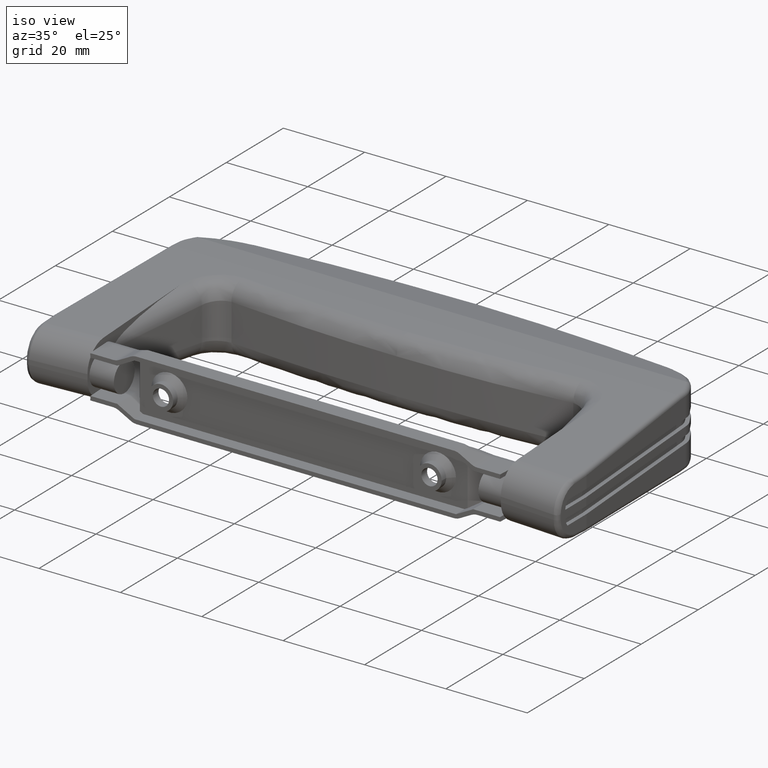
[diagram: clean part render]
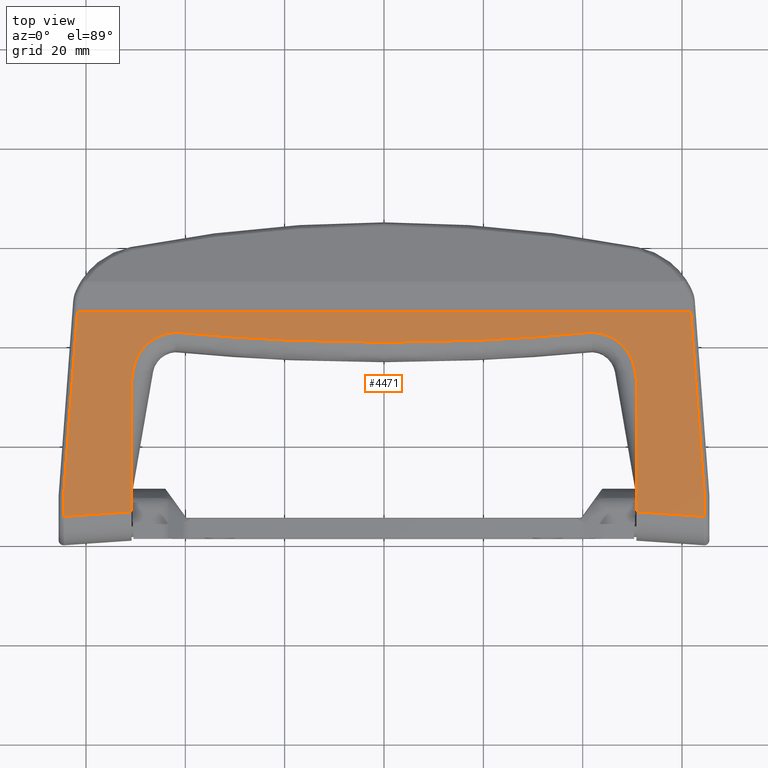
[diagram: tour spotlight — one face highlighted and labeled with its STEP entity id]
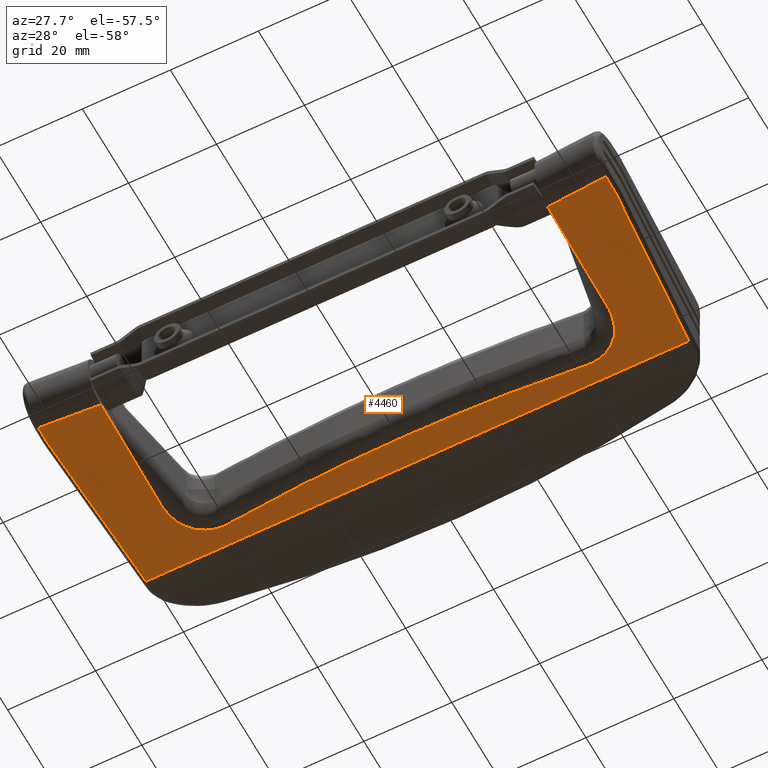
[diagram: tour spotlight — one face highlighted and labeled with its STEP entity id]
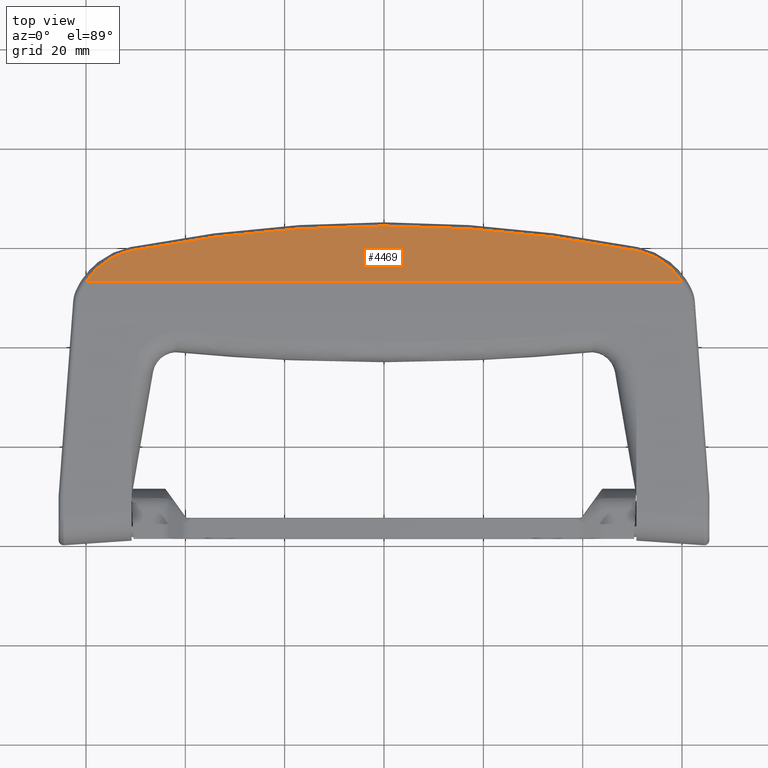
[diagram: tour spotlight — one face highlighted and labeled with its STEP entity id]
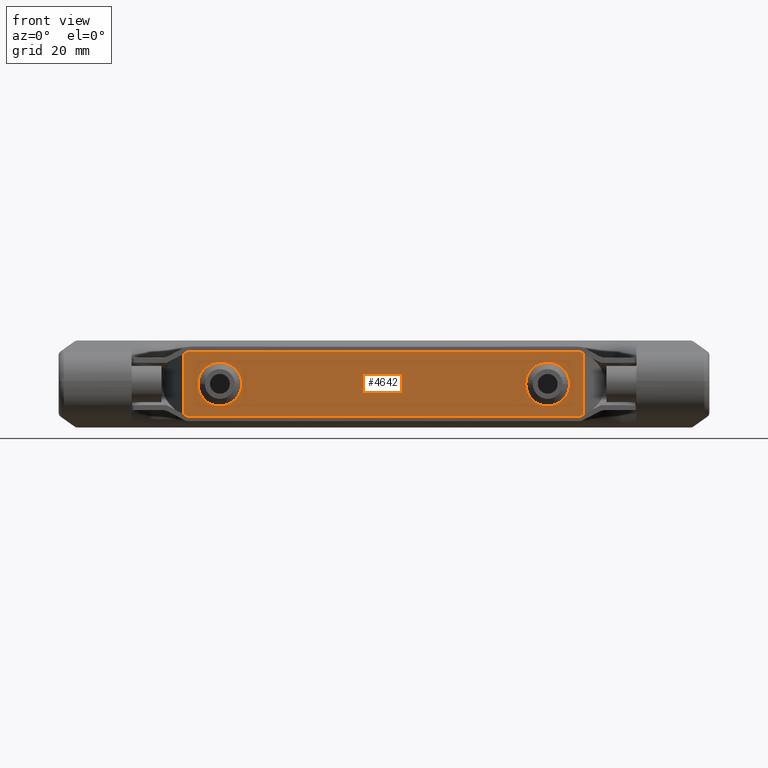
[diagram: tour spotlight — one face highlighted and labeled with its STEP entity id]
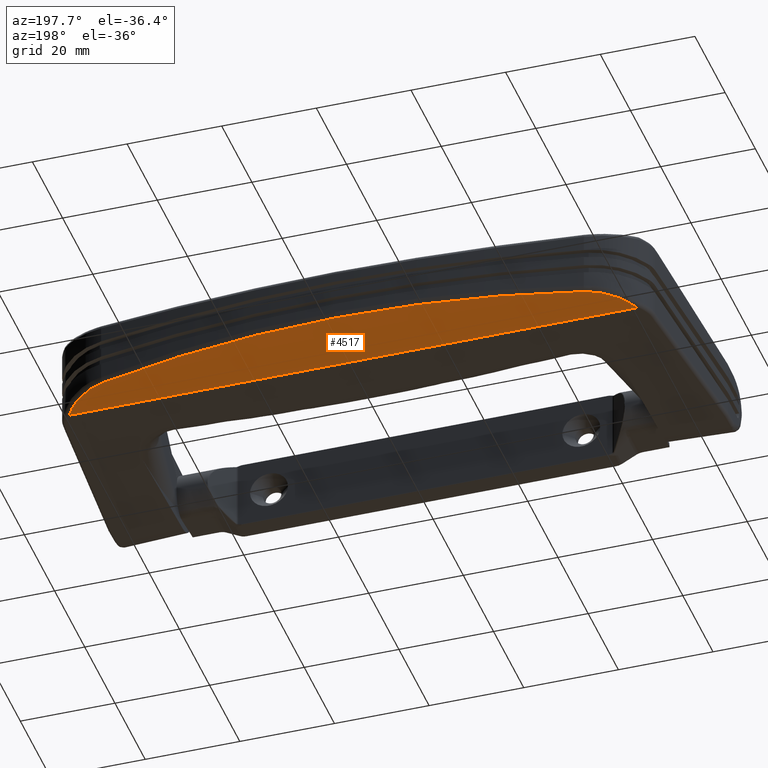
[diagram: tour spotlight — one face highlighted and labeled with its STEP entity id]
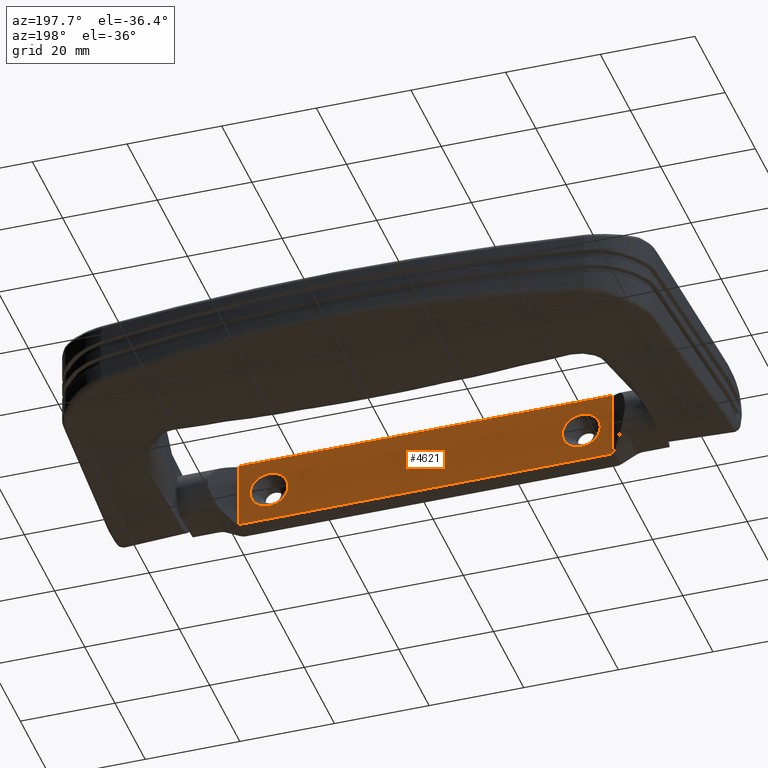
[diagram: tour spotlight — one face highlighted and labeled with its STEP entity id]
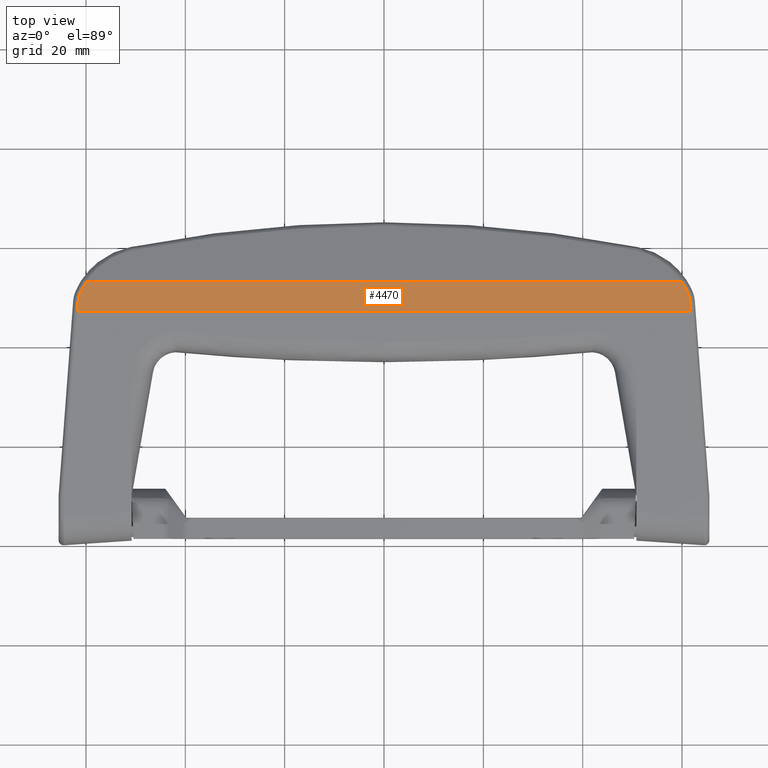
[diagram: tour spotlight — one face highlighted and labeled with its STEP entity id]
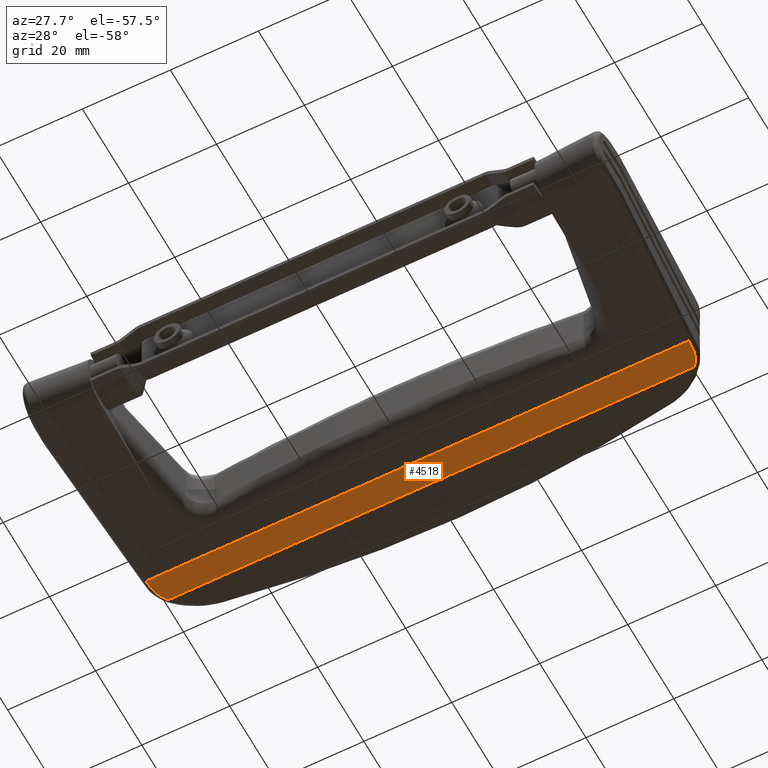
[diagram: tour spotlight — one face highlighted and labeled with its STEP entity id]
A machine part: a face-by-face anatomy tour. The part has 268 B-rep faces; the first image is the clean iso view, then the 8 largest visible faces are spotlighted one at a time (largest first), each with its STEP entity span.

Face 1 — top view, entity #4471. In plain terms, the highlighted planar face has unit normal (0, 0.0531, -0.9986).
Definition (entity closure, byte-faithful):
#73=PLANE('',#4853);
#177=ELLIPSE('',#4759,438.619186602217,438.);
#178=ELLIPSE('',#4760,8.83701613005414,8.82454115823703);
#201=ELLIPSE('',#4854,8.83701613005414,8.82454115823703);
#202=ELLIPSE('',#4855,438.619186602217,438.);
#499=FACE_OUTER_BOUND('',#769,.T.);
#769=EDGE_LOOP('',(#3366,#3367,#3368,#3369,#3370,#3371,#3372,#3373,#3374,
#3375,#3376,#3377,#3378,#3379,#3380));
#998=LINE('',#6737,#1324);
#1000=LINE('',#6807,#1326);
#1046=LINE('',#7198,#1372);
#1049=LINE('',#7270,#1375);
#1059=LINE('',#7297,#1385);
#1102=LINE('',#7591,#1428);
#1105=LINE('',#7653,#1431);
#1106=LINE('',#7656,#1432);
#1107=LINE('',#7658,#1433);
#1108=LINE('',#7660,#1434);
#1109=LINE('',#7662,#1435);
#1324=VECTOR('',#5281,37.2470218400863);
#1326=VECTOR('',#5305,4.15210170551256);
#1372=VECTOR('',#5449,2.11418969142384);
#1375=VECTOR('',#5464,13.7317526472054);
#1385=VECTOR('',#5498,26.7274027400128);
#1428=VECTOR('',#5657,37.2470218400863);
#1431=VECTOR('',#5684,123.436415427926);
#1432=VECTOR('',#5687,4.15210170551256);
#1433=VECTOR('',#5688,13.7317526472054);
#1434=VECTOR('',#5689,26.7274027400128);
#1435=VECTOR('',#5690,2.11418969142384);
#1851=VERTEX_POINT('',#6734);
#1852=VERTEX_POINT('',#6736);
#1857=VERTEX_POINT('',#6806);
#1905=VERTEX_POINT('',#7130);
#1906=VERTEX_POINT('',#7150);
#1907=VERTEX_POINT('',#7189);
#1909=VERTEX_POINT('',#7195);
#1913=VERTEX_POINT('',#7269);
#1985=VERTEX_POINT('',#7588);
#1986=VERTEX_POINT('',#7590);
#1989=VERTEX_POINT('',#7655);
#1990=VERTEX_POINT('',#7657);
#1991=VERTEX_POINT('',#7659);
#1992=VERTEX_POINT('',#7661);
#1993=VERTEX_POINT('',#7663);
#2299=EDGE_CURVE('',#1852,#1851,#998,.T.);
#2310=EDGE_CURVE('',#1857,#1852,#1000,.T.);
#2384=EDGE_CURVE('',#1906,#1905,#177,.T.);
#2386=EDGE_CURVE('',#1905,#1907,#178,.T.);
#2390=EDGE_CURVE('',#1907,#1909,#1046,.T.);
#2397=EDGE_CURVE('',#1913,#1857,#1049,.T.);
#2411=EDGE_CURVE('',#1909,#1913,#1059,.T.);
#2501=EDGE_CURVE('',#1985,#1986,#1102,.T.);
#2512=EDGE_CURVE('',#1851,#1986,#1105,.T.);
#2513=EDGE_CURVE('',#1989,#1985,#1106,.T.);
#2514=EDGE_CURVE('',#1990,#1989,#1107,.T.);
#2515=EDGE_CURVE('',#1991,#1990,#1108,.T.);
#2516=EDGE_CURVE('',#1992,#1991,#1109,.T.);
#2517=EDGE_CURVE('',#1993,#1992,#201,.T.);
#2518=EDGE_CURVE('',#1906,#1993,#202,.T.);
#3366=ORIENTED_EDGE('',*,*,#2501,.F.);
#3367=ORIENTED_EDGE('',*,*,#2513,.F.);
#3368=ORIENTED_EDGE('',*,*,#2514,.F.);
#3369=ORIENTED_EDGE('',*,*,#2515,.F.);
#3370=ORIENTED_EDGE('',*,*,#2516,.F.);
#3371=ORIENTED_EDGE('',*,*,#2517,.F.);
#3372=ORIENTED_EDGE('',*,*,#2518,.F.);
#3373=ORIENTED_EDGE('',*,*,#2384,.T.);
#3374=ORIENTED_EDGE('',*,*,#2386,.T.);
#3375=ORIENTED_EDGE('',*,*,#2390,.T.);
#3376=ORIENTED_EDGE('',*,*,#2411,.T.);
#3377=ORIENTED_EDGE('',*,*,#2397,.T.);
#3378=ORIENTED_EDGE('',*,*,#2310,.T.);
#3379=ORIENTED_EDGE('',*,*,#2299,.T.);
#3380=ORIENTED_EDGE('',*,*,#2512,.T.);
#4471=ADVANCED_FACE('',(#499),#73,.F.);
#4759=AXIS2_PLACEMENT_3D('',#7151,#5437,#5438);
#4760=AXIS2_PLACEMENT_3D('',#7190,#5439,#5440);
#4853=AXIS2_PLACEMENT_3D('',#7654,#5685,#5686);
#4854=AXIS2_PLACEMENT_3D('',#7664,#5691,#5692);
#4855=AXIS2_PLACEMENT_3D('',#7665,#5693,#5694);
#5281=DIRECTION('',(-0.0746849586519971,0.995799448693296,0.0529680557815583));
#5305=DIRECTION('',(0.,0.998588327594573,0.0531164004039666));
#5437=DIRECTION('center_axis',(0.,-0.0531164004039666,0.998588327594573));
#5438=DIRECTION('ref_axis',(2.32868331768043E-15,-0.998588327594573,-0.0531164004039666));
#5439=DIRECTION('center_axis',(0.,0.0531164004039666,-0.998588327594573));
#5440=DIRECTION('ref_axis',(2.52836908315617E-15,0.998588327594573,0.0531164004039666));
#5449=DIRECTION('',(0.169278438521756,-0.984176968149751,-0.0523498387313697));
#5464=DIRECTION('',(0.997687647890171,-0.0678699080197395,-0.00361010149041167));
#5498=DIRECTION('',(0.,-0.998588327594573,-0.0531164004039666));
#5657=DIRECTION('',(0.0746849586519971,0.995799448693296,0.0529680557815583));
#5684=DIRECTION('',(-1.,-2.54927546417746E-15,-1.35599758732844E-16));
#5685=DIRECTION('center_axis',(0.,0.0531164004039666,-0.998588327594573));
#5686=DIRECTION('ref_axis',(0.,-0.998588327594573,-0.0531164004039667));
#5687=DIRECTION('',(0.,0.998588327594573,0.0531164004039666));
#5688=DIRECTION('',(-0.997687647890171,-0.0678699080197395,-0.00361010149041167));
#5689=DIRECTION('',(0.,-0.998588327594573,-0.0531164004039666));
#5690=DIRECTION('',(-0.169278438521756,-0.984176968149751,-0.0523498387313697));
#5691=DIRECTION('center_axis',(0.,-0.0531164004039666,0.998588327594573));
#5692=DIRECTION('ref_axis',(-2.52836908315617E-15,0.998588327594573,0.0531164004039666));
#5693=DIRECTION('center_axis',(0.,0.0531164004039666,-0.998588327594573));
#5694=DIRECTION('ref_axis',(-2.32868331768043E-15,-0.998588327594573,-0.0531164004039666));
#6734=CARTESIAN_POINT('',(61.7182077139631,47.,8.75000000000001));
#6736=CARTESIAN_POINT('',(64.5,9.90943618617497,6.7770976694774));
#6737=CARTESIAN_POINT('',(61.4540111094975,50.5226213928749,8.93737347834441));
#6806=CARTESIAN_POINT('',(64.5,5.76319588806461,6.5565529727694));
#6807=CARTESIAN_POINT('',(64.5,23.1021893691457,7.47883986006095));
#7130=CARTESIAN_POINT('',(41.8700222699363,42.7933816450301,8.52624370452289));
#7150=CARTESIAN_POINT('',(-2.09478645151155E-28,40.7875343983842,8.41954970204172));
#7151=CARTESIAN_POINT('Origin',(0.,478.787534398384,31.7174220424672));
#7189=CARTESIAN_POINT('',(50.442113270297,35.4655778808752,8.1364669085572));
#7190=CARTESIAN_POINT('Origin',(41.745278069255,33.969722226296,8.05690011842001));
#7195=CARTESIAN_POINT('',(50.8,33.3848410802762,8.02578941916364));
#7198=CARTESIAN_POINT('',(50.9183246100058,32.6969073011725,7.98919719687088));
#7269=CARTESIAN_POINT('',(50.8,6.69516867718025,6.60612599346704));
#7270=CARTESIAN_POINT('',(31.703510343895,7.99424960616699,6.67522604288123));
#7297=CARTESIAN_POINT('',(50.8,23.8328348944814,7.51770398374902));
#7588=CARTESIAN_POINT('',(-64.5,9.90943618617497,6.7770976694774));
#7590=CARTESIAN_POINT('',(-61.7182077139631,47.,8.75000000000001));
#7591=CARTESIAN_POINT('',(-61.4540111094975,50.5226213928749,8.93737347834441));
#7653=CARTESIAN_POINT('',(32.7499999999999,46.9999999999999,8.75));
#7654=CARTESIAN_POINT('Origin',(0.,47.,8.75000000000001));
#7655=CARTESIAN_POINT('',(-64.5,5.76319588806461,6.5565529727694));
#7656=CARTESIAN_POINT('',(-64.5,23.1021893691457,7.47883986006095));
#7657=CARTESIAN_POINT('',(-50.8,6.69516867718025,6.60612599346704));
#7658=CARTESIAN_POINT('',(-31.703510343895,7.99424960616699,6.67522604288123));
#7659=CARTESIAN_POINT('',(-50.8,33.3848410802762,8.02578941916364));
#7660=CARTESIAN_POINT('',(-50.8,23.8328348944814,7.51770398374902));
#7661=CARTESIAN_POINT('',(-50.442113270297,35.4655778808752,8.1364669085572));
#7662=CARTESIAN_POINT('',(-50.9183246100058,32.6969073011725,7.98919719687088));
#7663=CARTESIAN_POINT('',(-41.8700222699363,42.7933816450301,8.52624370452289));
#7664=CARTESIAN_POINT('Origin',(-41.745278069255,33.969722226296,8.05690011842001));
#7665=CARTESIAN_POINT('Origin',(0.,478.787534398384,31.7174220424672));

Face 2 — auxiliary view, entity #4460. In plain terms, the highlighted planar face has unit normal (0, 0.0531, 0.9986).
Definition (entity closure, byte-faithful):
#70=PLANE('',#4827);
#173=ELLIPSE('',#4755,8.83701613005414,8.82454115823703);
#174=ELLIPSE('',#4756,438.619186602217,438.);
#194=ELLIPSE('',#4828,438.619186602217,438.);
#195=ELLIPSE('',#4829,8.83701613005414,8.82454115823703);
#488=FACE_OUTER_BOUND('',#758,.T.);
#758=EDGE_LOOP('',(#3301,#3302,#3303,#3304,#3305,#3306,#3307,#3308,#3309,
#3310,#3311,#3312,#3313,#3314,#3315));
#971=LINE('',#6567,#1297);
#994=LINE('',#6688,#1320);
#1042=LINE('',#7020,#1368);
#1053=LINE('',#7281,#1379);
#1060=LINE('',#7298,#1386);
#1065=LINE('',#7390,#1391);
#1094=LINE('',#7530,#1420);
#1095=LINE('',#7533,#1421);
#1096=LINE('',#7539,#1422);
#1097=LINE('',#7541,#1423);
#1098=LINE('',#7542,#1424);
#1297=VECTOR('',#5180,37.2470218400857);
#1320=VECTOR('',#5255,4.15210170551251);
#1368=VECTOR('',#5421,2.11418969142378);
#1379=VECTOR('',#5476,13.7317526472054);
#1386=VECTOR('',#5499,26.7274027400129);
#1391=VECTOR('',#5528,37.2470218400857);
#1420=VECTOR('',#5619,4.15210170551251);
#1421=VECTOR('',#5624,123.436415427926);
#1422=VECTOR('',#5629,2.11418969142378);
#1423=VECTOR('',#5630,26.7274027400129);
#1424=VECTOR('',#5631,13.7317526472054);
#1809=VERTEX_POINT('',#6565);
#1810=VERTEX_POINT('',#6566);
#1842=VERTEX_POINT('',#6686);
#1893=VERTEX_POINT('',#7016);
#1895=VERTEX_POINT('',#7019);
#1898=VERTEX_POINT('',#7056);
#1899=VERTEX_POINT('',#7092);
#1916=VERTEX_POINT('',#7279);
#1931=VERTEX_POINT('',#7388);
#1932=VERTEX_POINT('',#7389);
#1972=VERTEX_POINT('',#7529);
#1973=VERTEX_POINT('',#7534);
#1974=VERTEX_POINT('',#7536);
#1975=VERTEX_POINT('',#7538);
#1976=VERTEX_POINT('',#7540);
#2242=EDGE_CURVE('',#1809,#1810,#971,.T.);
#2286=EDGE_CURVE('',#1810,#1842,#994,.T.);
#2371=EDGE_CURVE('',#1895,#1893,#1042,.T.);
#2376=EDGE_CURVE('',#1893,#1898,#173,.T.);
#2377=EDGE_CURVE('',#1898,#1899,#174,.T.);
#2403=EDGE_CURVE('',#1842,#1916,#1053,.T.);
#2412=EDGE_CURVE('',#1916,#1895,#1060,.T.);
#2427=EDGE_CURVE('',#1931,#1932,#1065,.T.);
#2481=EDGE_CURVE('',#1932,#1972,#1094,.T.);
#2483=EDGE_CURVE('',#1931,#1809,#1095,.T.);
#2484=EDGE_CURVE('',#1973,#1899,#194,.T.);
#2485=EDGE_CURVE('',#1974,#1973,#195,.T.);
#2486=EDGE_CURVE('',#1975,#1974,#1096,.T.);
#2487=EDGE_CURVE('',#1976,#1975,#1097,.T.);
#2488=EDGE_CURVE('',#1972,#1976,#1098,.T.);
#3301=ORIENTED_EDGE('',*,*,#2427,.F.);
#3302=ORIENTED_EDGE('',*,*,#2483,.T.);
#3303=ORIENTED_EDGE('',*,*,#2242,.T.);
#3304=ORIENTED_EDGE('',*,*,#2286,.T.);
#3305=ORIENTED_EDGE('',*,*,#2403,.T.);
#3306=ORIENTED_EDGE('',*,*,#2412,.T.);
#3307=ORIENTED_EDGE('',*,*,#2371,.T.);
#3308=ORIENTED_EDGE('',*,*,#2376,.T.);
#3309=ORIENTED_EDGE('',*,*,#2377,.T.);
#3310=ORIENTED_EDGE('',*,*,#2484,.F.);
#3311=ORIENTED_EDGE('',*,*,#2485,.F.);
#3312=ORIENTED_EDGE('',*,*,#2486,.F.);
#3313=ORIENTED_EDGE('',*,*,#2487,.F.);
#3314=ORIENTED_EDGE('',*,*,#2488,.F.);
#3315=ORIENTED_EDGE('',*,*,#2481,.F.);
#4460=ADVANCED_FACE('',(#488),#70,.F.);
#4755=AXIS2_PLACEMENT_3D('',#7071,#5427,#5428);
#4756=AXIS2_PLACEMENT_3D('',#7093,#5429,#5430);
#4827=AXIS2_PLACEMENT_3D('',#7532,#5622,#5623);
#4828=AXIS2_PLACEMENT_3D('',#7535,#5625,#5626);
#4829=AXIS2_PLACEMENT_3D('',#7537,#5627,#5628);
#5180=DIRECTION('',(0.0746849586519971,-0.995799448693296,0.052968055781559));
#5255=DIRECTION('',(0.,-0.998588327594573,0.0531164004039673));
#5421=DIRECTION('',(-0.169278438521756,0.984176968149751,-0.0523498387313704));
#5427=DIRECTION('center_axis',(0.,0.0531164004039673,0.998588327594573));
#5428=DIRECTION('ref_axis',(1.13069921731208E-15,0.998588327594573,-0.0531164004039673));
#5429=DIRECTION('center_axis',(0.,-0.0531164004039673,-0.998588327594573));
#5430=DIRECTION('ref_axis',(-1.21496520922457E-16,-0.998588327594573,0.0531164004039673));
#5476=DIRECTION('',(-0.997687647890171,0.0678699080197395,-0.00361010149041172));
#5499=DIRECTION('',(0.,0.998588327594573,-0.0531164004039673));
#5528=DIRECTION('',(-0.0746849586519971,-0.995799448693296,0.052968055781559));
#5619=DIRECTION('',(0.,-0.998588327594573,0.0531164004039673));
#5622=DIRECTION('center_axis',(0.,0.0531164004039673,0.998588327594573));
#5623=DIRECTION('ref_axis',(0.,0.998588327594573,-0.0531164004039673));
#5624=DIRECTION('',(1.,-4.77989149533267E-15,2.54249547624082E-16));
#5625=DIRECTION('center_axis',(0.,0.0531164004039673,0.998588327594573));
#5626=DIRECTION('ref_axis',(1.21496520922457E-16,-0.998588327594573,0.0531164004039673));
#5627=DIRECTION('center_axis',(0.,-0.0531164004039673,-0.998588327594573));
#5628=DIRECTION('ref_axis',(-1.13069921731208E-15,0.998588327594573,-0.0531164004039673));
#5629=DIRECTION('',(0.169278438521756,0.984176968149751,-0.0523498387313704));
#5630=DIRECTION('',(0.,0.998588327594573,-0.0531164004039673));
#5631=DIRECTION('',(0.997687647890171,0.0678699080197395,-0.00361010149041172));
#6565=CARTESIAN_POINT('',(61.7182077139632,46.9999999999994,-8.74999999999998));
#6566=CARTESIAN_POINT('',(64.5,9.90943618617492,-6.77709766947737));
#6567=CARTESIAN_POINT('',(63.2066801611239,27.1537007045228,-7.69434578215547));
#6686=CARTESIAN_POINT('',(64.5,5.7631958880646,-6.55655297276938));
#6688=CARTESIAN_POINT('',(64.5,0.0663017718090474,-6.25352668998982));
#7016=CARTESIAN_POINT('',(50.442113270297,35.4655778808752,-8.13646690855719));
#7019=CARTESIAN_POINT('',(50.8,33.3848410802763,-8.02578941916364));
#7020=CARTESIAN_POINT('',(54.8445003330429,9.87030426025908,-6.77501618405632));
#7056=CARTESIAN_POINT('',(41.8700222699362,42.7933816450302,-8.52624370452289));
#7071=CARTESIAN_POINT('Origin',(41.745278069255,33.969722226296,-8.05690011842));
#7092=CARTESIAN_POINT('',(6.1866349396232E-30,40.7875343983842,-8.41954970204172));
#7093=CARTESIAN_POINT('Origin',(0.,478.787534398384,-31.7174220424675));
#7279=CARTESIAN_POINT('',(50.8,6.69516867718025,-6.60612599346702));
#7281=CARTESIAN_POINT('',(33.2992673050021,7.88569471085358,-6.66945184632198));
#7298=CARTESIAN_POINT('',(50.8,0.332834894481429,-6.26770398374899));
#7388=CARTESIAN_POINT('',(-61.7182077139632,46.9999999999994,-8.74999999999998));
#7389=CARTESIAN_POINT('',(-64.5,9.90943618617492,-6.77709766947737));
#7390=CARTESIAN_POINT('',(-63.2066801611239,27.1537007045228,-7.69434578215547));
#7529=CARTESIAN_POINT('',(-64.5,5.7631958880646,-6.55655297276938));
#7530=CARTESIAN_POINT('',(-64.5,0.0663017718090474,-6.25352668998982));
#7532=CARTESIAN_POINT('Origin',(0.,-8.88178419700125E-15,-6.24999999999998));
#7533=CARTESIAN_POINT('',(-32.7499999999998,46.9999999999999,-8.75));
#7534=CARTESIAN_POINT('',(-41.8700222699362,42.7933816450302,-8.52624370452289));
#7535=CARTESIAN_POINT('Origin',(0.,478.787534398384,-31.7174220424675));
#7536=CARTESIAN_POINT('',(-50.442113270297,35.4655778808752,-8.13646690855719));
#7537=CARTESIAN_POINT('Origin',(-41.745278069255,33.969722226296,-8.05690011842));
#7538=CARTESIAN_POINT('',(-50.8,33.3848410802763,-8.02578941916364));
#7539=CARTESIAN_POINT('',(-54.8445003330429,9.87030426025908,-6.77501618405632));
#7540=CARTESIAN_POINT('',(-50.8,6.69516867718025,-6.60612599346702));
#7541=CARTESIAN_POINT('',(-50.8,0.332834894481429,-6.26770398374899));
#7542=CARTESIAN_POINT('',(-33.2992673050021,7.88569471085358,-6.66945184632198));

Face 3 — top view, entity #4469. In plain terms, the highlighted planar face has unit normal (0, -0.2614, -0.9652).
Definition (entity closure, byte-faithful):
#71=PLANE('',#4851);
#168=ELLIPSE('',#4706,14.8438576189995,14.3276828348831);
#169=ELLIPSE('',#4708,271.024505349608,261.599999999999);
#198=ELLIPSE('',#4842,14.8438576189995,14.3276828348831);
#200=ELLIPSE('',#4845,271.024505349608,261.599999999999);
#277=B_SPLINE_CURVE_WITH_KNOTS('',3,(#6708,#6709,#6710,#6711,#6712,#6713,
#6714,#6715),.UNSPECIFIED.,.F.,.F.,(4,2,2,4),(3.97467861653922,3.98235854735661,
3.98871443923552,3.98932340608242),.UNSPECIFIED.);
#289=B_SPLINE_CURVE_WITH_KNOTS('',3,(#7549,#7550,#7551,#7552,#7553,#7554,
#7555,#7556),.UNSPECIFIED.,.F.,.F.,(4,2,2,4),(3.97467861653922,3.98235854735661,
3.98871443923552,3.98932340608242),.UNSPECIFIED.);
#497=FACE_OUTER_BOUND('',#767,.T.);
#767=EDGE_LOOP('',(#3349,#3350,#3351,#3352,#3353,#3354,#3355));
#1104=LINE('',#7651,#1430);
#1430=VECTOR('',#5681,119.770432221023);
#1843=VERTEX_POINT('',#6690);
#1844=VERTEX_POINT('',#6707);
#1853=VERTEX_POINT('',#6764);
#1854=VERTEX_POINT('',#6787);
#1978=VERTEX_POINT('',#7546);
#1979=VERTEX_POINT('',#7548);
#1987=VERTEX_POINT('',#7618);
#2288=EDGE_CURVE('',#1844,#1843,#277,.T.);
#2301=EDGE_CURVE('',#1843,#1853,#168,.T.);
#2304=EDGE_CURVE('',#1853,#1854,#169,.T.);
#2491=EDGE_CURVE('',#1978,#1979,#289,.T.);
#2503=EDGE_CURVE('',#1979,#1987,#198,.T.);
#2506=EDGE_CURVE('',#1987,#1854,#200,.T.);
#2511=EDGE_CURVE('',#1978,#1844,#1104,.T.);
#3349=ORIENTED_EDGE('',*,*,#2506,.F.);
#3350=ORIENTED_EDGE('',*,*,#2503,.F.);
#3351=ORIENTED_EDGE('',*,*,#2491,.F.);
#3352=ORIENTED_EDGE('',*,*,#2511,.T.);
#3353=ORIENTED_EDGE('',*,*,#2288,.T.);
#3354=ORIENTED_EDGE('',*,*,#2301,.T.);
#3355=ORIENTED_EDGE('',*,*,#2304,.T.);
#4469=ADVANCED_FACE('',(#497),#71,.F.);
#4706=AXIS2_PLACEMENT_3D('',#6765,#5284,#5285);
#4708=AXIS2_PLACEMENT_3D('',#6796,#5288,#5289);
#4842=AXIS2_PLACEMENT_3D('',#7619,#5660,#5661);
#4845=AXIS2_PLACEMENT_3D('',#7642,#5666,#5667);
#4851=AXIS2_PLACEMENT_3D('',#7650,#5679,#5680);
#5284=DIRECTION('center_axis',(0.,0.261415475728319,0.965226371919943));
#5285=DIRECTION('ref_axis',(1.49586859847553E-16,0.965226371919943,-0.261415475728319));
#5288=DIRECTION('center_axis',(0.,0.261415475728319,0.965226371919943));
#5289=DIRECTION('ref_axis',(0.,0.965226371919943,-0.261415475728319));
#5660=DIRECTION('center_axis',(0.,-0.261415475728319,-0.965226371919943));
#5661=DIRECTION('ref_axis',(-1.49586859847553E-16,0.965226371919943,-0.261415475728319));
#5666=DIRECTION('center_axis',(0.,-0.261415475728319,-0.965226371919943));
#5667=DIRECTION('ref_axis',(0.,0.965226371919943,-0.261415475728319));
#5679=DIRECTION('center_axis',(0.,-0.261415475728319,-0.965226371919943));
#5680=DIRECTION('ref_axis',(0.,-0.965226371919943,0.261415475728319));
#5681=DIRECTION('',(1.,-5.00676032244344E-16,1.35599758732844E-16));
#6690=CARTESIAN_POINT('',(60.0331481703361,53.0385960288559,8.73954690885154));
#6707=CARTESIAN_POINT('',(59.8852161105116,53.,8.75000000000001));
#6708=CARTESIAN_POINT('Ctrl Pts',(59.8852161105116,53.,8.75000000000001));
#6709=CARTESIAN_POINT('Ctrl Pts',(59.9108158799029,53.,8.75000000000001));
#6710=CARTESIAN_POINT('Ctrl Pts',(59.9413524708954,53.0032328611918,8.74912443342724));
#6711=CARTESIAN_POINT('Ctrl Pts',(59.9865103932495,53.0150425517516,8.74592597556729));
#6712=CARTESIAN_POINT('Ctrl Pts',(60.0099340880974,53.0245825976916,8.74334221312521));
#6713=CARTESIAN_POINT('Ctrl Pts',(60.0296573183076,53.0364036039438,8.74014069059855));
#6714=CARTESIAN_POINT('Ctrl Pts',(60.0313986541081,53.0374795842219,8.73984927927323));
#6715=CARTESIAN_POINT('Ctrl Pts',(60.0331481703361,53.0385960288558,8.73954690885155));
#6764=CARTESIAN_POINT('',(50.8057882711348,59.2804558413033,7.04904320964702));
#6765=CARTESIAN_POINT('Origin',(48.0231842171401,45.2255773254393,10.8555728076935));
#6787=CARTESIAN_POINT('',(0.,64.2614154757283,5.70003330865692));
#6796=CARTESIAN_POINT('Origin',(7.105427357601E-14,-197.338584524271,76.5500333086569));
#7546=CARTESIAN_POINT('',(-59.8852161105116,53.,8.75000000000001));
#7548=CARTESIAN_POINT('',(-60.0331481703361,53.0385960288559,8.73954690885154));
#7549=CARTESIAN_POINT('Ctrl Pts',(-59.8852161105116,53.,8.75000000000001));
#7550=CARTESIAN_POINT('Ctrl Pts',(-59.9108158799029,53.,8.75000000000001));
#7551=CARTESIAN_POINT('Ctrl Pts',(-59.9413524708954,53.0032328611918,8.74912443342724));
#7552=CARTESIAN_POINT('Ctrl Pts',(-59.9865103932495,53.0150425517516,8.74592597556729));
#7553=CARTESIAN_POINT('Ctrl Pts',(-60.0099340880974,53.0245825976916,8.74334221312521));
#7554=CARTESIAN_POINT('Ctrl Pts',(-60.0296573183076,53.0364036039438,8.74014069059855));
#7555=CARTESIAN_POINT('Ctrl Pts',(-60.0313986541081,53.0374795842219,8.73984927927323));
#7556=CARTESIAN_POINT('Ctrl Pts',(-60.0331481703361,53.0385960288558,8.73954690885155));
#7618=CARTESIAN_POINT('',(-50.8057882711348,59.2804558413033,7.04904320964702));
#7619=CARTESIAN_POINT('Origin',(-48.0231842171401,45.2255773254393,10.8555728076935));
#7642=CARTESIAN_POINT('Origin',(-7.105427357601E-14,-197.338584524271,76.5500333086569));
#7650=CARTESIAN_POINT('Origin',(0.,65.,5.5));
#7651=CARTESIAN_POINT('',(32.75,53.,8.75));

Face 4 — front view, entity #4642. In plain terms, the highlighted planar face has unit normal (0, -1, -0).
Definition (entity closure, byte-faithful):
#42=FACE_BOUND('',#950,.T.);
#43=FACE_BOUND('',#951,.T.);
#134=PLANE('',#5131);
#670=FACE_OUTER_BOUND('',#949,.T.);
#949=EDGE_LOOP('',(#4256,#4257,#4258,#4259,#4260,#4261,#4262,#4263));
#950=EDGE_LOOP('',(#4264));
#951=EDGE_LOOP('',(#4265));
#1178=LINE('',#8577,#1504);
#1212=LINE('',#9052,#1538);
#1213=LINE('',#9055,#1539);
#1247=LINE('',#9551,#1573);
#1254=LINE('',#9565,#1580);
#1285=LINE('',#10037,#1611);
#1287=LINE('',#10041,#1613);
#1290=LINE('',#10045,#1616);
#1504=VECTOR('',#5995,0.866153621452652);
#1538=VECTOR('',#6125,12.1894747130517);
#1539=VECTOR('',#6128,0.866153621452652);
#1573=VECTOR('',#6272,0.866153621452652);
#1580=VECTOR('',#6287,79.0032479862953);
#1611=VECTOR('',#6418,12.1894747130517);
#1613=VECTOR('',#6422,0.866153621452652);
#1616=VECTOR('',#6427,79.0032479862953);
#1757=CIRCLE('',#5026,4.4142135623731);
#1790=CIRCLE('',#5132,4.4142135623731);
#2075=VERTEX_POINT('',#8575);
#2076=VERTEX_POINT('',#8576);
#2121=VERTEX_POINT('',#9049);
#2122=VERTEX_POINT('',#9054);
#2126=VERTEX_POINT('',#9068);
#2173=VERTEX_POINT('',#9549);
#2174=VERTEX_POINT('',#9550);
#2220=VERTEX_POINT('',#10035);
#2221=VERTEX_POINT('',#10040);
#2222=VERTEX_POINT('',#10046);
#2666=EDGE_CURVE('',#2075,#2076,#1178,.T.);
#2742=EDGE_CURVE('',#2121,#2076,#1212,.F.);
#2743=EDGE_CURVE('',#2122,#2121,#1213,.T.);
#2750=EDGE_CURVE('',#2126,#2126,#1757,.F.);
#2823=EDGE_CURVE('',#2173,#2174,#1247,.T.);
#2831=EDGE_CURVE('',#2173,#2075,#1254,.T.);
#2904=EDGE_CURVE('',#2220,#2174,#1285,.F.);
#2906=EDGE_CURVE('',#2221,#2220,#1287,.T.);
#2909=EDGE_CURVE('',#2122,#2221,#1290,.T.);
#2910=EDGE_CURVE('',#2222,#2222,#1790,.F.);
#4256=ORIENTED_EDGE('',*,*,#2904,.F.);
#4257=ORIENTED_EDGE('',*,*,#2906,.F.);
#4258=ORIENTED_EDGE('',*,*,#2909,.F.);
#4259=ORIENTED_EDGE('',*,*,#2743,.T.);
#4260=ORIENTED_EDGE('',*,*,#2742,.T.);
#4261=ORIENTED_EDGE('',*,*,#2666,.F.);
#4262=ORIENTED_EDGE('',*,*,#2831,.F.);
#4263=ORIENTED_EDGE('',*,*,#2823,.T.);
#4264=ORIENTED_EDGE('',*,*,#2750,.T.);
#4265=ORIENTED_EDGE('',*,*,#2910,.F.);
#4642=ADVANCED_FACE('',(#670,#42,#43),#134,.T.);
#5026=AXIS2_PLACEMENT_3D('',#9069,#6143,#6144);
#5131=AXIS2_PLACEMENT_3D('',#10044,#6425,#6426);
#5132=AXIS2_PLACEMENT_3D('',#10047,#6428,#6429);
#5995=DIRECTION('',(0.883787916347062,0.467887720419032,0.));
#6125=DIRECTION('',(0.,1.,0.));
#6128=DIRECTION('',(0.883787916347062,-0.467887720419032,0.));
#6143=DIRECTION('center_axis',(0.,0.,-1.));
#6144=DIRECTION('ref_axis',(-1.,0.,0.));
#6272=DIRECTION('',(-0.883787916347062,0.467887720419032,0.));
#6287=DIRECTION('',(1.,0.,0.));
#6418=DIRECTION('',(0.,1.,0.));
#6422=DIRECTION('',(-0.883787916347062,-0.467887720419032,0.));
#6425=DIRECTION('center_axis',(0.,0.,-1.));
#6426=DIRECTION('ref_axis',(-1.,0.,0.));
#6427=DIRECTION('',(-1.,0.,0.));
#6428=DIRECTION('center_axis',(0.,0.,1.));
#6429=DIRECTION('ref_axis',(1.,0.,0.));
#8575=CARTESIAN_POINT('',(39.5016239931476,-6.5,3.));
#8576=CARTESIAN_POINT('',(40.2671200974877,-6.09473735652583,3.));
#8577=CARTESIAN_POINT('',(25.3088014687702,-14.0138472187881,3.));
#9049=CARTESIAN_POINT('',(40.2671200974877,6.09473735652583,3.));
#9052=CARTESIAN_POINT('',(40.2671200974877,0.,3.));
#9054=CARTESIAN_POINT('',(39.5016239931476,6.5,3.));
#9055=CARTESIAN_POINT('',(25.3088014687702,14.0138472187881,3.));
#9068=CARTESIAN_POINT('',(37.4142135623731,-1.80195083663768E-16,3.));
#9069=CARTESIAN_POINT('Origin',(33.,0.,3.));
#9549=CARTESIAN_POINT('',(-39.5016239931476,-6.5,3.));
#9550=CARTESIAN_POINT('',(-40.2671200974877,-6.09473735652583,3.));
#9551=CARTESIAN_POINT('',(-25.3088014687702,-14.0138472187881,3.));
#9565=CARTESIAN_POINT('',(0.,-6.5,3.));
#10035=CARTESIAN_POINT('',(-40.2671200974877,6.09473735652583,3.));
#10037=CARTESIAN_POINT('',(-40.2671200974877,0.,3.));
#10040=CARTESIAN_POINT('',(-39.5016239931476,6.5,3.));
#10041=CARTESIAN_POINT('',(-25.3088014687702,14.0138472187881,3.));
#10044=CARTESIAN_POINT('Origin',(0.,0.,3.));
#10045=CARTESIAN_POINT('',(0.,6.5,3.));
#10046=CARTESIAN_POINT('',(-37.4142135623731,-1.80195083663768E-16,3.));
#10047=CARTESIAN_POINT('Origin',(-33.,0.,3.));

Face 5 — auxiliary view, entity #4517. In plain terms, the highlighted planar face has unit normal (0, -0.2614, 0.9652).
Definition (entity closure, byte-faithful):
#91=PLANE('',#4928);
#158=ELLIPSE('',#4661,271.024505349608,261.599999999999);
#160=ELLIPSE('',#4663,14.8438576189995,14.3276828348831);
#185=ELLIPSE('',#4786,271.024505349608,261.599999999999);
#188=ELLIPSE('',#4790,14.8438576189995,14.3276828348831);
#273=B_SPLINE_CURVE_WITH_KNOTS('',3,(#6580,#6581,#6582,#6583,#6584,#6585,
#6586,#6587),.UNSPECIFIED.,.F.,.F.,(4,2,2,4),(1.4316880348297,1.43229700167663,
1.43865289355554,1.44633282437292),.UNSPECIFIED.);
#286=B_SPLINE_CURVE_WITH_KNOTS('',3,(#7404,#7405,#7406,#7407,#7408,#7409,
#7410,#7411),.UNSPECIFIED.,.F.,.F.,(4,2,2,4),(1.4316880348297,1.43229700167663,
1.43865289355554,1.44633282437292),.UNSPECIFIED.);
#545=FACE_OUTER_BOUND('',#816,.T.);
#816=EDGE_LOOP('',(#3637,#3638,#3639,#3640,#3641,#3642,#3643));
#1156=LINE('',#8115,#1482);
#1482=VECTOR('',#5887,119.770432221023);
#1800=VERTEX_POINT('',#6497);
#1802=VERTEX_POINT('',#6507);
#1804=VERTEX_POINT('',#6537);
#1813=VERTEX_POINT('',#6578);
#1923=VERTEX_POINT('',#7328);
#1926=VERTEX_POINT('',#7360);
#1935=VERTEX_POINT('',#7401);
#2234=EDGE_CURVE('',#1800,#1802,#158,.T.);
#2237=EDGE_CURVE('',#1802,#1804,#160,.T.);
#2250=EDGE_CURVE('',#1804,#1813,#273,.T.);
#2417=EDGE_CURVE('',#1800,#1923,#185,.T.);
#2421=EDGE_CURVE('',#1923,#1926,#188,.T.);
#2436=EDGE_CURVE('',#1926,#1935,#286,.T.);
#2604=EDGE_CURVE('',#1813,#1935,#1156,.T.);
#3637=ORIENTED_EDGE('',*,*,#2417,.F.);
#3638=ORIENTED_EDGE('',*,*,#2234,.T.);
#3639=ORIENTED_EDGE('',*,*,#2237,.T.);
#3640=ORIENTED_EDGE('',*,*,#2250,.T.);
#3641=ORIENTED_EDGE('',*,*,#2604,.T.);
#3642=ORIENTED_EDGE('',*,*,#2436,.F.);
#3643=ORIENTED_EDGE('',*,*,#2421,.F.);
#4517=ADVANCED_FACE('',(#545),#91,.F.);
#4661=AXIS2_PLACEMENT_3D('',#6509,#5164,#5165);
#4663=AXIS2_PLACEMENT_3D('',#6554,#5168,#5169);
#4786=AXIS2_PLACEMENT_3D('',#7329,#5508,#5509);
#4790=AXIS2_PLACEMENT_3D('',#7361,#5516,#5517);
#4928=AXIS2_PLACEMENT_3D('',#8114,#5885,#5886);
#5164=DIRECTION('center_axis',(0.,0.261415475728319,-0.965226371919943));
#5165=DIRECTION('ref_axis',(-2.94940332682825E-16,0.965226371919943,0.261415475728319));
#5168=DIRECTION('center_axis',(0.,0.261415475728319,-0.965226371919943));
#5169=DIRECTION('ref_axis',(1.49586859847553E-16,0.965226371919943,0.261415475728319));
#5508=DIRECTION('center_axis',(0.,-0.261415475728319,0.965226371919943));
#5509=DIRECTION('ref_axis',(2.94940332682825E-16,0.965226371919943,0.261415475728319));
#5516=DIRECTION('center_axis',(0.,-0.261415475728319,0.965226371919943));
#5517=DIRECTION('ref_axis',(-1.49586859847553E-16,0.965226371919943,0.261415475728319));
#5885=DIRECTION('center_axis',(0.,-0.261415475728319,0.965226371919943));
#5886=DIRECTION('ref_axis',(0.,0.965226371919943,0.261415475728319));
#5887=DIRECTION('',(-1.,-9.38767560458144E-16,-2.54249547624082E-16));
#6497=CARTESIAN_POINT('',(-3.15544362088405E-29,64.2614154757282,-5.70003330865694));
#6507=CARTESIAN_POINT('',(50.8057882711348,59.2804558413033,-7.04904320964702));
#6509=CARTESIAN_POINT('Origin',(7.105427357601E-14,-197.338584524271,-76.550033308657));
#6537=CARTESIAN_POINT('',(60.033148170336,53.0385960288559,-8.73954690885153));
#6554=CARTESIAN_POINT('Origin',(48.0231842171401,45.2255773254393,-10.8555728076935));
#6578=CARTESIAN_POINT('',(59.8852161105115,53.0000000000001,-8.74999999999998));
#6580=CARTESIAN_POINT('Ctrl Pts',(60.033148170336,53.0385960288559,-8.73954690885155));
#6581=CARTESIAN_POINT('Ctrl Pts',(60.031398654108,53.0374795842219,-8.73984927927324));
#6582=CARTESIAN_POINT('Ctrl Pts',(60.0296573183076,53.0364036039439,-8.74014069059854));
#6583=CARTESIAN_POINT('Ctrl Pts',(60.0099340880974,53.0245825976916,-8.74334221312521));
#6584=CARTESIAN_POINT('Ctrl Pts',(59.9865103932494,53.0150425517516,-8.74592597556729));
#6585=CARTESIAN_POINT('Ctrl Pts',(59.9413524708954,53.0032328611918,-8.74912443342724));
#6586=CARTESIAN_POINT('Ctrl Pts',(59.9108158799029,53.,-8.75000000000001));
#6587=CARTESIAN_POINT('Ctrl Pts',(59.8852161105116,53.,-8.75000000000001));
#7328=CARTESIAN_POINT('',(-50.8057882711348,59.2804558413033,-7.04904320964702));
#7329=CARTESIAN_POINT('Origin',(-7.105427357601E-14,-197.338584524271,-76.550033308657));
#7360=CARTESIAN_POINT('',(-60.033148170336,53.0385960288559,-8.73954690885153));
#7361=CARTESIAN_POINT('Origin',(-48.0231842171401,45.2255773254393,-10.8555728076935));
#7401=CARTESIAN_POINT('',(-59.8852161105115,53.0000000000001,-8.74999999999998));
#7404=CARTESIAN_POINT('Ctrl Pts',(-60.033148170336,53.0385960288559,-8.73954690885155));
#7405=CARTESIAN_POINT('Ctrl Pts',(-60.031398654108,53.0374795842219,-8.73984927927324));
#7406=CARTESIAN_POINT('Ctrl Pts',(-60.0296573183076,53.0364036039439,-8.74014069059854));
#7407=CARTESIAN_POINT('Ctrl Pts',(-60.0099340880974,53.0245825976916,-8.74334221312521));
#7408=CARTESIAN_POINT('Ctrl Pts',(-59.9865103932494,53.0150425517516,-8.74592597556729));
#7409=CARTESIAN_POINT('Ctrl Pts',(-59.9413524708954,53.0032328611918,-8.74912443342724));
#7410=CARTESIAN_POINT('Ctrl Pts',(-59.9108158799029,53.,-8.75000000000001));
#7411=CARTESIAN_POINT('Ctrl Pts',(-59.8852161105116,53.,-8.75000000000001));
#8114=CARTESIAN_POINT('Origin',(0.,53.,-8.75000000000001));
#8115=CARTESIAN_POINT('',(-32.75,53.,-8.75));

Face 6 — auxiliary view, entity #4621. In plain terms, the highlighted planar face has unit normal (0, -1, -0).
Definition (entity closure, byte-faithful):
#40=FACE_BOUND('',#927,.T.);
#41=FACE_BOUND('',#928,.T.);
#125=PLANE('',#5103);
#222=ELLIPSE('',#4954,5.22300184267114,2.8);
#235=ELLIPSE('',#4995,5.22300184267114,2.8);
#250=ELLIPSE('',#5055,5.22300184267114,2.8);
#265=ELLIPSE('',#5102,5.22300184267114,2.8);
#649=FACE_OUTER_BOUND('',#926,.T.);
#926=EDGE_LOOP('',(#4121,#4122,#4123,#4124,#4125,#4126,#4127,#4128));
#927=EDGE_LOOP('',(#4129));
#928=EDGE_LOOP('',(#4130));
#1191=LINE('',#8760,#1517);
#1221=LINE('',#9094,#1547);
#1257=LINE('',#9578,#1583);
#1260=LINE('',#9734,#1586);
#1517=VECTOR('',#6060,14.3125949744483);
#1547=VECTOR('',#6176,77.6973587651713);
#1583=VECTOR('',#6304,77.6973587651713);
#1586=VECTOR('',#6341,14.3125949744483);
#1760=CIRCLE('',#5033,4.);
#1783=CIRCLE('',#5104,4.);
#2035=VERTEX_POINT('',#8125);
#2049=VERTEX_POINT('',#8261);
#2082=VERTEX_POINT('',#8599);
#2094=VERTEX_POINT('',#8726);
#2129=VERTEX_POINT('',#9078);
#2131=VERTEX_POINT('',#9087);
#2145=VERTEX_POINT('',#9226);
#2178=VERTEX_POINT('',#9570);
#2190=VERTEX_POINT('',#9700);
#2192=VERTEX_POINT('',#9735);
#2629=EDGE_CURVE('',#2049,#2035,#222,.T.);
#2698=EDGE_CURVE('',#2094,#2082,#235,.T.);
#2700=EDGE_CURVE('',#2049,#2094,#1191,.T.);
#2753=EDGE_CURVE('',#2129,#2129,#1760,.T.);
#2760=EDGE_CURVE('',#2035,#2131,#1221,.T.);
#2780=EDGE_CURVE('',#2145,#2131,#250,.T.);
#2837=EDGE_CURVE('',#2178,#2082,#1257,.T.);
#2856=EDGE_CURVE('',#2190,#2178,#265,.T.);
#2857=EDGE_CURVE('',#2145,#2190,#1260,.T.);
#2858=EDGE_CURVE('',#2192,#2192,#1783,.T.);
#4121=ORIENTED_EDGE('',*,*,#2857,.F.);
#4122=ORIENTED_EDGE('',*,*,#2780,.T.);
#4123=ORIENTED_EDGE('',*,*,#2760,.F.);
#4124=ORIENTED_EDGE('',*,*,#2629,.F.);
#4125=ORIENTED_EDGE('',*,*,#2700,.T.);
#4126=ORIENTED_EDGE('',*,*,#2698,.T.);
#4127=ORIENTED_EDGE('',*,*,#2837,.F.);
#4128=ORIENTED_EDGE('',*,*,#2856,.F.);
#4129=ORIENTED_EDGE('',*,*,#2753,.F.);
#4130=ORIENTED_EDGE('',*,*,#2858,.T.);
#4621=ADVANCED_FACE('',(#649,#40,#41),#125,.F.);
#4954=AXIS2_PLACEMENT_3D('',#8293,#5942,#5943);
#4995=AXIS2_PLACEMENT_3D('',#8757,#6054,#6055);
#5033=AXIS2_PLACEMENT_3D('',#9079,#6157,#6158);
#5055=AXIS2_PLACEMENT_3D('',#9257,#6208,#6209);
#5102=AXIS2_PLACEMENT_3D('',#9732,#6337,#6338);
#5103=AXIS2_PLACEMENT_3D('',#9733,#6339,#6340);
#5104=AXIS2_PLACEMENT_3D('',#9736,#6342,#6343);
#5942=DIRECTION('center_axis',(0.,0.,-1.));
#5943=DIRECTION('ref_axis',(-0.883787916347062,-0.467887720419032,0.));
#6054=DIRECTION('center_axis',(0.,0.,1.));
#6055=DIRECTION('ref_axis',(-0.883787916347062,0.467887720419032,0.));
#6060=DIRECTION('',(0.,1.,0.));
#6157=DIRECTION('center_axis',(0.,0.,1.));
#6158=DIRECTION('ref_axis',(-1.,0.,0.));
#6176=DIRECTION('',(-1.,0.,0.));
#6208=DIRECTION('center_axis',(0.,0.,1.));
#6209=DIRECTION('ref_axis',(0.883787916347062,-0.467887720419032,0.));
#6304=DIRECTION('',(1.,0.,0.));
#6337=DIRECTION('center_axis',(0.,0.,-1.));
#6338=DIRECTION('ref_axis',(0.883787916347062,0.467887720419032,0.));
#6339=DIRECTION('center_axis',(0.,0.,-1.));
#6340=DIRECTION('ref_axis',(-1.,0.,0.));
#6341=DIRECTION('',(0.,1.,0.));
#6342=DIRECTION('center_axis',(0.,0.,-1.));
#6343=DIRECTION('ref_axis',(1.,0.,0.));
#8125=CARTESIAN_POINT('',(38.8486793825856,-7.3,4.));
#8261=CARTESIAN_POINT('',(39.4914399512579,-7.15629748722415,4.));
#8293=CARTESIAN_POINT('Origin',(40.0984616633394,-3.92104075558419,4.));
#8599=CARTESIAN_POINT('',(38.8486793825856,7.3,4.));
#8726=CARTESIAN_POINT('',(39.4914399512579,7.15629748722415,4.));
#8757=CARTESIAN_POINT('Origin',(40.0984616633394,3.92104075558419,4.));
#8760=CARTESIAN_POINT('',(39.4914399512561,0.,4.));
#9078=CARTESIAN_POINT('',(37.,0.,4.));
#9079=CARTESIAN_POINT('Origin',(33.,0.,4.));
#9087=CARTESIAN_POINT('',(-38.8486793825856,-7.3,4.));
#9094=CARTESIAN_POINT('',(0.,-7.3,4.));
#9226=CARTESIAN_POINT('',(-39.4914399512579,-7.15629748722415,4.));
#9257=CARTESIAN_POINT('Origin',(-40.0984616633394,-3.92104075558419,4.));
#9570=CARTESIAN_POINT('',(-38.8486793825856,7.3,4.));
#9578=CARTESIAN_POINT('',(0.,7.3,4.));
#9700=CARTESIAN_POINT('',(-39.4914399512579,7.15629748722415,4.));
#9732=CARTESIAN_POINT('Origin',(-40.0984616633394,3.92104075558419,4.));
#9733=CARTESIAN_POINT('Origin',(0.,0.,4.));
#9734=CARTESIAN_POINT('',(-39.4914399512561,0.,4.));
#9735=CARTESIAN_POINT('',(-37.,0.,4.));
#9736=CARTESIAN_POINT('Origin',(-33.,0.,4.));

Face 7 — top view, entity #4470. In plain terms, the highlighted planar face has unit normal (0, 0, 1).
Definition (entity closure, byte-faithful):
#72=PLANE('',#4852);
#167=ELLIPSE('',#4704,18.8793034829148,1.);
#197=ELLIPSE('',#4841,18.8793034829148,1.);
#498=FACE_OUTER_BOUND('',#768,.T.);
#768=EDGE_LOOP('',(#3356,#3357,#3358,#3359,#3360,#3361,#3362,#3363,#3364,
#3365));
#995=LINE('',#6727,#1321);
#1099=LINE('',#7581,#1425);
#1104=LINE('',#7651,#1430);
#1105=LINE('',#7653,#1431);
#1321=VECTOR('',#5272,2.05014991734007);
#1425=VECTOR('',#5648,2.05014991734007);
#1430=VECTOR('',#5681,119.770432221023);
#1431=VECTOR('',#5684,123.436415427926);
#1637=CIRCLE('',#4695,14.3276828348831);
#1641=CIRCLE('',#4700,5.);
#1693=CIRCLE('',#4832,14.3276828348831);
#1695=CIRCLE('',#4835,5.);
#1844=VERTEX_POINT('',#6707);
#1845=VERTEX_POINT('',#6716);
#1847=VERTEX_POINT('',#6721);
#1848=VERTEX_POINT('',#6726);
#1851=VERTEX_POINT('',#6734);
#1977=VERTEX_POINT('',#7544);
#1978=VERTEX_POINT('',#7546);
#1981=VERTEX_POINT('',#7575);
#1982=VERTEX_POINT('',#7580);
#1986=VERTEX_POINT('',#7590);
#2289=EDGE_CURVE('',#1845,#1844,#1637,.T.);
#2293=EDGE_CURVE('',#1847,#1845,#1641,.T.);
#2294=EDGE_CURVE('',#1848,#1847,#995,.T.);
#2298=EDGE_CURVE('',#1851,#1848,#167,.T.);
#2490=EDGE_CURVE('',#1977,#1978,#1693,.T.);
#2494=EDGE_CURVE('',#1981,#1977,#1695,.T.);
#2496=EDGE_CURVE('',#1982,#1981,#1099,.T.);
#2502=EDGE_CURVE('',#1986,#1982,#197,.T.);
#2511=EDGE_CURVE('',#1978,#1844,#1104,.T.);
#2512=EDGE_CURVE('',#1851,#1986,#1105,.T.);
#3356=ORIENTED_EDGE('',*,*,#2490,.F.);
#3357=ORIENTED_EDGE('',*,*,#2494,.F.);
#3358=ORIENTED_EDGE('',*,*,#2496,.F.);
#3359=ORIENTED_EDGE('',*,*,#2502,.F.);
#3360=ORIENTED_EDGE('',*,*,#2512,.F.);
#3361=ORIENTED_EDGE('',*,*,#2298,.T.);
#3362=ORIENTED_EDGE('',*,*,#2294,.T.);
#3363=ORIENTED_EDGE('',*,*,#2293,.T.);
#3364=ORIENTED_EDGE('',*,*,#2289,.T.);
#3365=ORIENTED_EDGE('',*,*,#2511,.F.);
#4470=ADVANCED_FACE('',(#498),#72,.T.);
#4695=AXIS2_PLACEMENT_3D('',#6717,#5258,#5259);
#4700=AXIS2_PLACEMENT_3D('',#6724,#5268,#5269);
#4704=AXIS2_PLACEMENT_3D('',#6735,#5279,#5280);
#4832=AXIS2_PLACEMENT_3D('',#7547,#5636,#5637);
#4835=AXIS2_PLACEMENT_3D('',#7577,#5642,#5643);
#4841=AXIS2_PLACEMENT_3D('',#7592,#5658,#5659);
#4852=AXIS2_PLACEMENT_3D('',#7652,#5682,#5683);
#5258=DIRECTION('center_axis',(-1.35599758732844E-16,0.,1.));
#5259=DIRECTION('ref_axis',(0.886880609404759,0.461998684697093,1.20260796660123E-16));
#5268=DIRECTION('center_axis',(-1.35599758732844E-16,0.,1.));
#5269=DIRECTION('ref_axis',(0.970920786896441,0.239400972371451,1.3165662445186E-16));
#5272=DIRECTION('',(-0.0747899482416342,0.997199309888457,-1.01414989372075E-17));
#5279=DIRECTION('center_axis',(-1.35599758732844E-16,0.,1.));
#5280=DIRECTION('ref_axis',(0.0747899482416342,-0.997199309888456,5.22875930401844E-18));
#5636=DIRECTION('center_axis',(-1.35599758732844E-16,0.,-1.));
#5637=DIRECTION('ref_axis',(-0.886880609404759,0.461998684697093,1.20260796660123E-16));
#5642=DIRECTION('center_axis',(-1.35599758732844E-16,0.,-1.));
#5643=DIRECTION('ref_axis',(-0.970920786896441,0.239400972371451,1.3165662445186E-16));
#5648=DIRECTION('',(0.0747899482416342,0.997199309888457,-1.01414989372075E-17));
#5658=DIRECTION('center_axis',(-1.35599758732844E-16,0.,-1.));
#5659=DIRECTION('ref_axis',(-0.0747899482416342,-0.997199309888456,5.22875930401844E-18));
#5681=DIRECTION('',(1.,-5.00676032244344E-16,1.35599758732844E-16));
#5682=DIRECTION('center_axis',(1.35599758732844E-16,0.,1.));
#5683=DIRECTION('ref_axis',(1.,0.,-1.77635683940025E-16));
#5684=DIRECTION('',(-1.,-2.54927546417746E-15,-1.35599758732844E-16));
#6707=CARTESIAN_POINT('',(59.8852161105116,53.,8.75000000000001));
#6716=CARTESIAN_POINT('',(61.1711678874423,50.6574052857913,8.75000000000001));
#6717=CARTESIAN_POINT('Origin',(48.0231842171401,44.964161849711,8.75));
#6721=CARTESIAN_POINT('',(61.5688496961746,49.044556637584,8.75000000000001));
#6724=CARTESIAN_POINT('Origin',(56.5828531467323,48.6706068963758,8.75000000000001));
#6726=CARTESIAN_POINT('',(61.7221803023801,47.0001485548446,8.75000000000001));
#6727=CARTESIAN_POINT('',(63.3757031139773,24.9531777335483,8.75000000000001));
#6734=CARTESIAN_POINT('',(61.7182077139631,47.,8.75000000000001));
#6735=CARTESIAN_POINT('Origin',(60.3101981720548,65.8265769591819,8.75000000000001));
#7544=CARTESIAN_POINT('',(-61.1711678874423,50.6574052857913,8.75000000000001));
#7546=CARTESIAN_POINT('',(-59.8852161105116,53.,8.75000000000001));
#7547=CARTESIAN_POINT('Origin',(-48.0231842171401,44.964161849711,8.75));
#7575=CARTESIAN_POINT('',(-61.5688496961746,49.044556637584,8.75000000000001));
#7577=CARTESIAN_POINT('Origin',(-56.5828531467323,48.6706068963758,8.75000000000001));
#7580=CARTESIAN_POINT('',(-61.7221803023801,47.0001485548446,8.75000000000001));
#7581=CARTESIAN_POINT('',(-63.3757031139773,24.9531777335483,8.75000000000001));
#7590=CARTESIAN_POINT('',(-61.7182077139631,47.,8.75000000000001));
#7592=CARTESIAN_POINT('Origin',(-60.3101981720548,65.8265769591819,8.75000000000001));
#7651=CARTESIAN_POINT('',(32.75,53.,8.75));
#7652=CARTESIAN_POINT('Origin',(-65.5,0.,8.75000000000001));
#7653=CARTESIAN_POINT('',(32.7499999999999,46.9999999999999,8.75));

Face 8 — auxiliary view, entity #4518. In plain terms, the highlighted planar face has unit normal (-0, 0, -1).
Definition (entity closure, byte-faithful):
#92=PLANE('',#4929);
#162=ELLIPSE('',#4668,18.8793034829146,1.);
#190=ELLIPSE('',#4796,18.8793034829146,1.);
#546=FACE_OUTER_BOUND('',#817,.T.);
#817=EDGE_LOOP('',(#3644,#3645,#3646,#3647,#3648,#3649,#3650,#3651,#3652,
#3653));
#970=LINE('',#6562,#1296);
#1064=LINE('',#7385,#1390);
#1095=LINE('',#7533,#1421);
#1156=LINE('',#8115,#1482);
#1296=VECTOR('',#5175,2.05014991734068);
#1390=VECTOR('',#5523,2.05014991734068);
#1421=VECTOR('',#5624,123.436415427926);
#1482=VECTOR('',#5887,119.770432221023);
#1626=CIRCLE('',#4673,5.);
#1627=CIRCLE('',#4675,14.3276828348831);
#1675=CIRCLE('',#4799,5.);
#1677=CIRCLE('',#4802,14.3276828348831);
#1807=VERTEX_POINT('',#6559);
#1808=VERTEX_POINT('',#6561);
#1809=VERTEX_POINT('',#6565);
#1812=VERTEX_POINT('',#6573);
#1813=VERTEX_POINT('',#6578);
#1929=VERTEX_POINT('',#7382);
#1930=VERTEX_POINT('',#7384);
#1931=VERTEX_POINT('',#7388);
#1934=VERTEX_POINT('',#7396);
#1935=VERTEX_POINT('',#7401);
#2240=EDGE_CURVE('',#1808,#1807,#970,.T.);
#2243=EDGE_CURVE('',#1807,#1809,#162,.T.);
#2248=EDGE_CURVE('',#1812,#1808,#1626,.T.);
#2249=EDGE_CURVE('',#1813,#1812,#1627,.T.);
#2425=EDGE_CURVE('',#1929,#1930,#1064,.T.);
#2430=EDGE_CURVE('',#1930,#1931,#190,.T.);
#2432=EDGE_CURVE('',#1934,#1929,#1675,.T.);
#2434=EDGE_CURVE('',#1935,#1934,#1677,.T.);
#2483=EDGE_CURVE('',#1931,#1809,#1095,.T.);
#2604=EDGE_CURVE('',#1813,#1935,#1156,.T.);
#3644=ORIENTED_EDGE('',*,*,#2434,.F.);
#3645=ORIENTED_EDGE('',*,*,#2604,.F.);
#3646=ORIENTED_EDGE('',*,*,#2249,.T.);
#3647=ORIENTED_EDGE('',*,*,#2248,.T.);
#3648=ORIENTED_EDGE('',*,*,#2240,.T.);
#3649=ORIENTED_EDGE('',*,*,#2243,.T.);
#3650=ORIENTED_EDGE('',*,*,#2483,.F.);
#3651=ORIENTED_EDGE('',*,*,#2430,.F.);
#3652=ORIENTED_EDGE('',*,*,#2425,.F.);
#3653=ORIENTED_EDGE('',*,*,#2432,.F.);
#4518=ADVANCED_FACE('',(#546),#92,.T.);
#4668=AXIS2_PLACEMENT_3D('',#6568,#5181,#5182);
#4673=AXIS2_PLACEMENT_3D('',#6576,#5192,#5193);
#4675=AXIS2_PLACEMENT_3D('',#6579,#5196,#5197);
#4796=AXIS2_PLACEMENT_3D('',#7393,#5532,#5533);
#4799=AXIS2_PLACEMENT_3D('',#7398,#5538,#5539);
#4802=AXIS2_PLACEMENT_3D('',#7402,#5544,#5545);
#4929=AXIS2_PLACEMENT_3D('',#8116,#5888,#5889);
#5175=DIRECTION('',(0.0747899482416342,-0.997199309888456,1.9015310507264E-17));
#5181=DIRECTION('center_axis',(2.54249547624082E-16,0.,-1.));
#5182=DIRECTION('ref_axis',(0.0747899482416342,-0.997199309888456,2.08117938853084E-17));
#5192=DIRECTION('center_axis',(2.54249547624082E-16,0.,-1.));
#5193=DIRECTION('ref_axis',(0.970920786896441,0.239400972371451,2.46856170847237E-16));
#5196=DIRECTION('center_axis',(2.54249547624082E-16,0.,-1.));
#5197=DIRECTION('ref_axis',(0.886880609404758,0.461998684697094,2.2548899373773E-16));
#5523=DIRECTION('',(-0.0747899482416342,-0.997199309888456,1.9015310507264E-17));
#5532=DIRECTION('center_axis',(2.54249547624082E-16,0.,1.));
#5533=DIRECTION('ref_axis',(-0.0747899482416342,-0.997199309888456,2.08117938853084E-17));
#5538=DIRECTION('center_axis',(2.54249547624082E-16,0.,1.));
#5539=DIRECTION('ref_axis',(-0.970920786896441,0.239400972371451,2.46856170847237E-16));
#5544=DIRECTION('center_axis',(2.54249547624082E-16,0.,1.));
#5545=DIRECTION('ref_axis',(-0.886880609404758,0.461998684697094,2.2548899373773E-16));
#5624=DIRECTION('',(1.,-4.77989149533267E-15,2.54249547624082E-16));
#5887=DIRECTION('',(-1.,-9.38767560458144E-16,-2.54249547624082E-16));
#5888=DIRECTION('center_axis',(-2.54249547624082E-16,0.,-1.));
#5889=DIRECTION('ref_axis',(-1.,0.,1.77635683940025E-16));
#6559=CARTESIAN_POINT('',(61.7221803023801,47.0001485548439,-8.74999999999998));
#6561=CARTESIAN_POINT('',(61.5688496961746,49.044556637584,-8.74999999999998));
#6562=CARTESIAN_POINT('',(63.0093264825292,29.8381994861897,-8.74999999999998));
#6565=CARTESIAN_POINT('',(61.7182077139632,46.9999999999994,-8.74999999999998));
#6568=CARTESIAN_POINT('Origin',(60.3101981720548,65.8265769591811,-8.74999999999998));
#6573=CARTESIAN_POINT('',(61.1711678874423,50.6574052857913,-8.74999999999998));
#6576=CARTESIAN_POINT('Origin',(56.5828531467323,48.6706068963758,-8.74999999999998));
#6578=CARTESIAN_POINT('',(59.8852161105115,53.0000000000001,-8.74999999999998));
#6579=CARTESIAN_POINT('Origin',(48.0231842171401,44.964161849711,-8.74999999999998));
#7382=CARTESIAN_POINT('',(-61.5688496961746,49.044556637584,-8.74999999999998));
#7384=CARTESIAN_POINT('',(-61.7221803023801,47.0001485548439,-8.74999999999998));
#7385=CARTESIAN_POINT('',(-63.0093264825292,29.8381994861897,-8.74999999999998));
#7388=CARTESIAN_POINT('',(-61.7182077139632,46.9999999999994,-8.74999999999998));
#7393=CARTESIAN_POINT('Origin',(-60.3101981720548,65.8265769591811,-8.74999999999998));
#7396=CARTESIAN_POINT('',(-61.1711678874423,50.6574052857913,-8.74999999999998));
#7398=CARTESIAN_POINT('Origin',(-56.5828531467323,48.6706068963758,-8.74999999999998));
#7401=CARTESIAN_POINT('',(-59.8852161105115,53.0000000000001,-8.74999999999998));
#7402=CARTESIAN_POINT('Origin',(-48.0231842171401,44.964161849711,-8.74999999999998));
#7533=CARTESIAN_POINT('',(-32.7499999999998,46.9999999999999,-8.75));
#8115=CARTESIAN_POINT('',(-32.75,53.,-8.75));
#8116=CARTESIAN_POINT('Origin',(65.5,0.,-8.75000000000001));